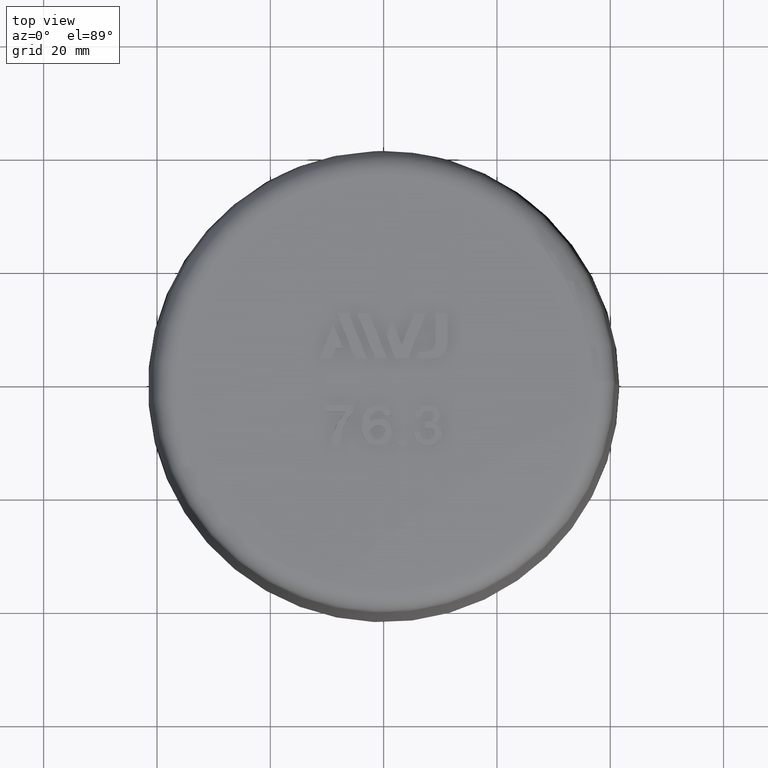
[diagram: clean part render]
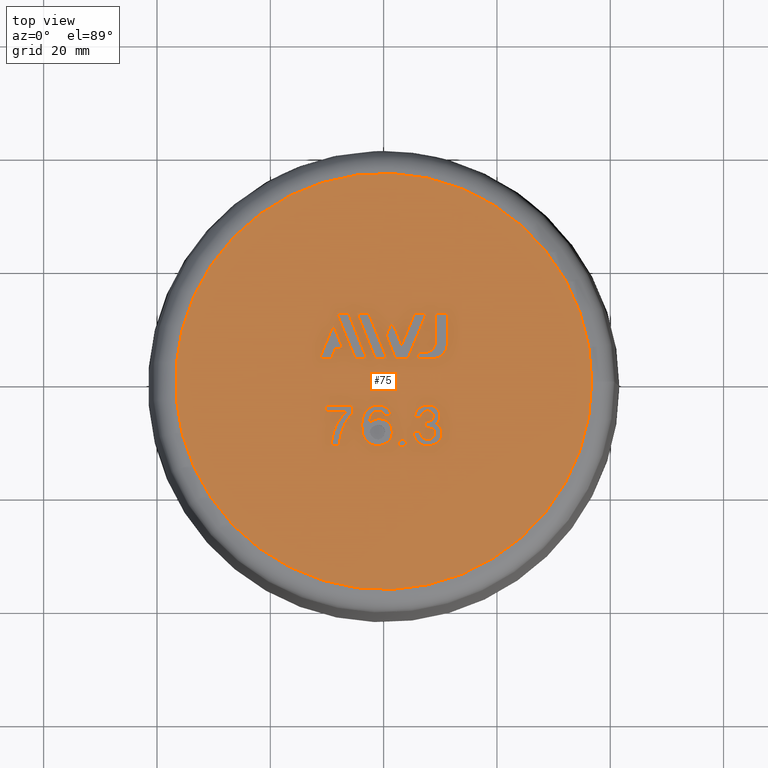
[diagram: same view with one face highlighted and labeled with its STEP entity id]
A machine part, top view. The second image highlights one B-rep face of the part: STEP entity #75.
In plain terms, the highlighted planar face has unit normal (0, 0, -1).
Its self-contained STEP definition (entity closure, byte-faithful):
#75 = ADVANCED_FACE( '', ( #143, #144, #145, #146, #147, #148, #149, #150, #151, #152 ), #153, .F. );
#143 = FACE_BOUND( '', #293, .T. );
#144 = FACE_BOUND( '', #294, .T. );
#145 = FACE_BOUND( '', #295, .T. );
#146 = FACE_BOUND( '', #296, .T. );
#147 = FACE_BOUND( '', #297, .T. );
#148 = FACE_BOUND( '', #298, .T. );
#149 = FACE_OUTER_BOUND( '', #299, .T. );
#150 = FACE_BOUND( '', #300, .T. );
#151 = FACE_BOUND( '', #301, .T. );
#152 = FACE_BOUND( '', #302, .T. );
#153 = PLANE( '', #303 );
#293 = EDGE_LOOP( '', ( #456, #457, #458, #459, #460, #461, #462, #463 ) );
#294 = EDGE_LOOP( '', ( #464 ) );
#295 = EDGE_LOOP( '', ( #465, #466, #467, #468 ) );
#296 = EDGE_LOOP( '', ( #469, #470, #471, #472, #473 ) );
#297 = EDGE_LOOP( '', ( #474, #475, #476, #477 ) );
#298 = EDGE_LOOP( '', ( #478, #479, #480, #481, #482, #483, #484, #485 ) );
#299 = EDGE_LOOP( '', ( #486 ) );
#300 = EDGE_LOOP( '', ( #487, #488, #489, #490, #491, #492, #493 ) );
#301 = EDGE_LOOP( '', ( #494, #495, #496, #497 ) );
#302 = EDGE_LOOP( '', ( #498, #499, #500, #501, #502, #503, #504 ) );
#303 = AXIS2_PLACEMENT_3D( '', #505, #506, #507 );
#456 = ORIENTED_EDGE( '', *, *, #1060, .T. );
#457 = ORIENTED_EDGE( '', *, *, #1061, .T. );
#458 = ORIENTED_EDGE( '', *, *, #1062, .T. );
#459 = ORIENTED_EDGE( '', *, *, #1063, .T. );
#460 = ORIENTED_EDGE( '', *, *, #1064, .T. );
#461 = ORIENTED_EDGE( '', *, *, #1065, .T. );
#462 = ORIENTED_EDGE( '', *, *, #1066, .T. );
#463 = ORIENTED_EDGE( '', *, *, #1067, .T. );
#464 = ORIENTED_EDGE( '', *, *, #1068, .T. );
#465 = ORIENTED_EDGE( '', *, *, #1069, .T. );
#466 = ORIENTED_EDGE( '', *, *, #1070, .T. );
#467 = ORIENTED_EDGE( '', *, *, #1071, .T. );
#468 = ORIENTED_EDGE( '', *, *, #1072, .T. );
#469 = ORIENTED_EDGE( '', *, *, #1073, .F. );
#470 = ORIENTED_EDGE( '', *, *, #1074, .F. );
#471 = ORIENTED_EDGE( '', *, *, #1075, .F. );
#472 = ORIENTED_EDGE( '', *, *, #1076, .F. );
#473 = ORIENTED_EDGE( '', *, *, #1077, .F. );
#474 = ORIENTED_EDGE( '', *, *, #1078, .F. );
#475 = ORIENTED_EDGE( '', *, *, #1079, .F. );
#476 = ORIENTED_EDGE( '', *, *, #1080, .F. );
#477 = ORIENTED_EDGE( '', *, *, #1081, .F. );
#478 = ORIENTED_EDGE( '', *, *, #1082, .F. );
#479 = ORIENTED_EDGE( '', *, *, #1083, .F. );
#480 = ORIENTED_EDGE( '', *, *, #1084, .F. );
#481 = ORIENTED_EDGE( '', *, *, #1085, .F. );
#482 = ORIENTED_EDGE( '', *, *, #1086, .F. );
#483 = ORIENTED_EDGE( '', *, *, #1087, .F. );
#484 = ORIENTED_EDGE( '', *, *, #1088, .F. );
#485 = ORIENTED_EDGE( '', *, *, #1089, .F. );
#486 = ORIENTED_EDGE( '', *, *, #1090, .T. );
#487 = ORIENTED_EDGE( '', *, *, #1091, .F. );
#488 = ORIENTED_EDGE( '', *, *, #1092, .F. );
#489 = ORIENTED_EDGE( '', *, *, #1093, .F. );
#490 = ORIENTED_EDGE( '', *, *, #1094, .F. );
#491 = ORIENTED_EDGE( '', *, *, #1095, .F. );
#492 = ORIENTED_EDGE( '', *, *, #1096, .F. );
#493 = ORIENTED_EDGE( '', *, *, #1097, .F. );
#494 = ORIENTED_EDGE( '', *, *, #1098, .F. );
#495 = ORIENTED_EDGE( '', *, *, #1099, .F. );
#496 = ORIENTED_EDGE( '', *, *, #1100, .F. );
#497 = ORIENTED_EDGE( '', *, *, #1101, .F. );
#498 = ORIENTED_EDGE( '', *, *, #1102, .T. );
#499 = ORIENTED_EDGE( '', *, *, #1103, .T. );
#500 = ORIENTED_EDGE( '', *, *, #1104, .T. );
#501 = ORIENTED_EDGE( '', *, *, #1105, .T. );
#502 = ORIENTED_EDGE( '', *, *, #1106, .T. );
#503 = ORIENTED_EDGE( '', *, *, #1107, .T. );
#504 = ORIENTED_EDGE( '', *, *, #1108, .T. );
#505 = CARTESIAN_POINT( '', ( -3.24520683762930E-015, 36.7309261136789, 53.0000000000000 ) );
#506 = DIRECTION( '', ( 6.12303176911189E-017, 0.000000000000000, -1.00000000000000 ) );
#507 = DIRECTION( '', ( -1.00000000000000, 0.000000000000000, -6.12303176911189E-017 ) );
#1060 = EDGE_CURVE( '', #1215, #1216, #1217, .T. );
#1061 = EDGE_CURVE( '', #1216, #1218, #1219, .T. );
#1062 = EDGE_CURVE( '', #1218, #1220, #1221, .T. );
#1063 = EDGE_CURVE( '', #1220, #1222, #1223, .T. );
#1064 = EDGE_CURVE( '', #1222, #1224, #1225, .T. );
#1065 = EDGE_CURVE( '', #1224, #1226, #1227, .T. );
#1066 = EDGE_CURVE( '', #1226, #1228, #1229, .T. );
#1067 = EDGE_CURVE( '', #1228, #1215, #1230, .T. );
#1068 = EDGE_CURVE( '', #1231, #1231, #1232, .T. );
#1069 = EDGE_CURVE( '', #1233, #1234, #1235, .T. );
#1070 = EDGE_CURVE( '', #1234, #1236, #1237, .T. );
#1071 = EDGE_CURVE( '', #1236, #1238, #1239, .T. );
#1072 = EDGE_CURVE( '', #1238, #1233, #1240, .T. );
#1073 = EDGE_CURVE( '', #1241, #1242, #1243, .T. );
#1074 = EDGE_CURVE( '', #1244, #1241, #1245, .T. );
#1075 = EDGE_CURVE( '', #1246, #1244, #1247, .T. );
#1076 = EDGE_CURVE( '', #1248, #1246, #1249, .T. );
#1077 = EDGE_CURVE( '', #1242, #1248, #1250, .T. );
#1078 = EDGE_CURVE( '', #1251, #1252, #1253, .T. );
#1079 = EDGE_CURVE( '', #1254, #1251, #1255, .T. );
#1080 = EDGE_CURVE( '', #1256, #1254, #1257, .T. );
#1081 = EDGE_CURVE( '', #1252, #1256, #1258, .T. );
#1082 = EDGE_CURVE( '', #1259, #1260, #1261, .T. );
#1083 = EDGE_CURVE( '', #1262, #1259, #1263, .T. );
#1084 = EDGE_CURVE( '', #1264, #1262, #1265, .T. );
#1085 = EDGE_CURVE( '', #1266, #1264, #1267, .T. );
#1086 = EDGE_CURVE( '', #1268, #1266, #1269, .T. );
#1087 = EDGE_CURVE( '', #1270, #1268, #1271, .T. );
#1088 = EDGE_CURVE( '', #1272, #1270, #1273, .T. );
#1089 = EDGE_CURVE( '', #1260, #1272, #1274, .T. );
#1090 = EDGE_CURVE( '', #1275, #1275, #1276, .T. );
#1091 = EDGE_CURVE( '', #1277, #1278, #1279, .T. );
#1092 = EDGE_CURVE( '', #1280, #1277, #1281, .T. );
#1093 = EDGE_CURVE( '', #1282, #1280, #1283, .T. );
#1094 = EDGE_CURVE( '', #1284, #1282, #1285, .T. );
#1095 = EDGE_CURVE( '', #1286, #1284, #1287, .T. );
#1096 = EDGE_CURVE( '', #1288, #1286, #1289, .T. );
#1097 = EDGE_CURVE( '', #1278, #1288, #1290, .T. );
#1098 = EDGE_CURVE( '', #1291, #1292, #1293, .T. );
#1099 = EDGE_CURVE( '', #1294, #1291, #1295, .T. );
#1100 = EDGE_CURVE( '', #1296, #1294, #1297, .T. );
#1101 = EDGE_CURVE( '', #1292, #1296, #1298, .T. );
#1102 = EDGE_CURVE( '', #1299, #1300, #1301, .T. );
#1103 = EDGE_CURVE( '', #1300, #1302, #1303, .T. );
#1104 = EDGE_CURVE( '', #1302, #1304, #1305, .T. );
#1105 = EDGE_CURVE( '', #1304, #1306, #1307, .T. );
#1106 = EDGE_CURVE( '', #1306, #1308, #1309, .T. );
#1107 = EDGE_CURVE( '', #1308, #1310, #1311, .T. );
#1108 = EDGE_CURVE( '', #1310, #1299, #1312, .T. );
#1215 = VERTEX_POINT( '', #1476 );
#1216 = VERTEX_POINT( '', #1477 );
#1217 = B_SPLINE_CURVE_WITH_KNOTS( '', 2, ( #1478, #1479, #1480, #1481, #1482, #1483, #1484, #1485, #1486 ), .UNSPECIFIED., .F., .F., ( 3, 2, 2, 2, 3 ), ( 19.0000000000000, 20.0000000000000, 21.0000000000000, 22.0000000000000, 23.0000000000000 ), .UNSPECIFIED. );
#1218 = VERTEX_POINT( '', #1487 );
#1219 = B_SPLINE_CURVE_WITH_KNOTS( '', 2, ( #1488, #1489, #1490 ), .UNSPECIFIED., .F., .F., ( 3, 3 ), ( 0.000000000000000, 1.00000000000000 ), .UNSPECIFIED. );
#1220 = VERTEX_POINT( '', #1491 );
#1221 = B_SPLINE_CURVE_WITH_KNOTS( '', 2, ( #1492, #1493, #1494 ), .UNSPECIFIED., .F., .F., ( 3, 3 ), ( 1.00000000000000, 2.00000000000000 ), .UNSPECIFIED. );
#1222 = VERTEX_POINT( '', #1495 );
#1223 = B_SPLINE_CURVE_WITH_KNOTS( '', 2, ( #1496, #1497, #1498, #1499, #1500, #1501, #1502, #1503, #1504, #1505, #1506 ), .UNSPECIFIED., .F., .F., ( 3, 2, 2, 2, 2, 3 ), ( 2.00000000000000, 3.00000000000000, 4.00000000000000, 5.00000000000000, 6.00000000000000, 7.00000000000000 ), .UNSPECIFIED. );
#1224 = VERTEX_POINT( '', #1507 );
#1225 = B_SPLINE_CURVE_WITH_KNOTS( '', 2, ( #1508, #1509, #1510 ), .UNSPECIFIED., .F., .F., ( 3, 3 ), ( 7.00000000000000, 8.00000000000000 ), .UNSPECIFIED. );
#1226 = VERTEX_POINT( '', #1511 );
#1227 = B_SPLINE_CURVE_WITH_KNOTS( '', 2, ( #1512, #1513, #1514, #1515, #1516, #1517, #1518, #1519, #1520, #1521, #1522 ), .UNSPECIFIED., .F., .F., ( 3, 2, 2, 2, 2, 3 ), ( 8.00000000000000, 9.00000000000000, 10.0000000000000, 11.0000000000000, 12.0000000000000, 13.0000000000000 ), .UNSPECIFIED. );
#1228 = VERTEX_POINT( '', #1523 );
#1229 = B_SPLINE_CURVE_WITH_KNOTS( '', 2, ( #1524, #1525, #1526 ), .UNSPECIFIED., .F., .F., ( 3, 3 ), ( 13.0000000000000, 14.0000000000000 ), .UNSPECIFIED. );
#1230 = B_SPLINE_CURVE_WITH_KNOTS( '', 2, ( #1527, #1528, #1529, #1530, #1531, #1532, #1533, #1534, #1535, #1536, #1537 ), .UNSPECIFIED., .F., .F., ( 3, 2, 2, 2, 2, 3 ), ( 14.0000000000000, 15.0000000000000, 16.0000000000000, 17.0000000000000, 18.0000000000000, 19.0000000000000 ), .UNSPECIFIED. );
#1231 = VERTEX_POINT( '', #1538 );
#1232 = B_SPLINE_CURVE_WITH_KNOTS( '', 2, ( #1539, #1540, #1541, #1542, #1543, #1544, #1545, #1546, #1547, #1548, #1549, #1550, #1551, #1552, #1553, #1554, #1555 ), .UNSPECIFIED., .T., .F., ( 3, 2, 2, 2, 2, 2, 2, 2, 3 ), ( 0.000000000000000, 1.00000000000000, 2.00000000000000, 3.00000000000000, 4.00000000000000, 5.00000000000000, 6.00000000000000, 7.00000000000000, 8.00000000000000 ), .UNSPECIFIED. );
#1233 = VERTEX_POINT( '', #1556 );
#1234 = VERTEX_POINT( '', #1557 );
#1235 = B_SPLINE_CURVE_WITH_KNOTS( '', 2, ( #1558, #1559, #1560, #1561, #1562, #1563, #1564, #1565, #1566, #1567, #1568, #1569, #1570, #1571, #1572, #1573, #1574, #1575, #1576, #1577, #1578, #1579, #1580 ), .UNSPECIFIED., .F., .F., ( 3, 2, 2, 2, 2, 2, 2, 2, 2, 2, 2, 3 ), ( 5.00000000000000, 6.00000000000000, 7.00000000000000, 8.00000000000000, 9.00000000000000, 10.0000000000000, 11.0000000000000, 12.0000000000000, 13.0000000000000, 14.0000000000000, 15.0000000000000, 16.0000000000000 ), .UNSPECIFIED. );
#1236 = VERTEX_POINT( '', #1581 );
#1237 = B_SPLINE_CURVE_WITH_KNOTS( '', 2, ( #1582, #1583, #1584 ), .UNSPECIFIED., .F., .F., ( 3, 3 ), ( 0.000000000000000, 1.00000000000000 ), .UNSPECIFIED. );
#1238 = VERTEX_POINT( '', #1585 );
#1239 = B_SPLINE_CURVE_WITH_KNOTS( '', 2, ( #1586, #1587, #1588 ), .UNSPECIFIED., .F., .F., ( 3, 3 ), ( 1.00000000000000, 2.00000000000000 ), .UNSPECIFIED. );
#1240 = B_SPLINE_CURVE_WITH_KNOTS( '', 2, ( #1589, #1590, #1591, #1592, #1593, #1594, #1595 ), .UNSPECIFIED., .F., .F., ( 3, 2, 2, 3 ), ( 2.00000000000000, 3.00000000000000, 4.00000000000000, 5.00000000000000 ), .UNSPECIFIED. );
#1241 = VERTEX_POINT( '', #1596 );
#1242 = VERTEX_POINT( '', #1597 );
#1243 = LINE( '', #1598, #1599 );
#1244 = VERTEX_POINT( '', #1600 );
#1245 = LINE( '', #1601, #1602 );
#1246 = VERTEX_POINT( '', #1603 );
#1247 = LINE( '', #1604, #1605 );
#1248 = VERTEX_POINT( '', #1606 );
#1249 = LINE( '', #1607, #1608 );
#1250 = LINE( '', #1609, #1610 );
#1251 = VERTEX_POINT( '', #1611 );
#1252 = VERTEX_POINT( '', #1612 );
#1253 = LINE( '', #1613, #1614 );
#1254 = VERTEX_POINT( '', #1615 );
#1255 = LINE( '', #1616, #1617 );
#1256 = VERTEX_POINT( '', #1618 );
#1257 = LINE( '', #1619, #1620 );
#1258 = LINE( '', #1621, #1622 );
#1259 = VERTEX_POINT( '', #1623 );
#1260 = VERTEX_POINT( '', #1624 );
#1261 = LINE( '', #1625, #1626 );
#1262 = VERTEX_POINT( '', #1627 );
#1263 = LINE( '', #1628, #1629 );
#1264 = VERTEX_POINT( '', #1630 );
#1265 = LINE( '', #1631, #1632 );
#1266 = VERTEX_POINT( '', #1633 );
#1267 = CIRCLE( '', #1634, 2.66906640000000 );
#1268 = VERTEX_POINT( '', #1635 );
#1269 = LINE( '', #1636, #1637 );
#1270 = VERTEX_POINT( '', #1638 );
#1271 = LINE( '', #1639, #1640 );
#1272 = VERTEX_POINT( '', #1641 );
#1273 = LINE( '', #1642, #1643 );
#1274 = CIRCLE( '', #1644, 1.77937760000000 );
#1275 = VERTEX_POINT( '', #1645 );
#1276 = CIRCLE( '', #1646, 36.7309261136789 );
#1277 = VERTEX_POINT( '', #1647 );
#1278 = VERTEX_POINT( '', #1648 );
#1279 = LINE( '', #1649, #1650 );
#1280 = VERTEX_POINT( '', #1651 );
#1281 = LINE( '', #1652, #1653 );
#1282 = VERTEX_POINT( '', #1654 );
#1283 = LINE( '', #1655, #1656 );
#1284 = VERTEX_POINT( '', #1657 );
#1285 = LINE( '', #1658, #1659 );
#1286 = VERTEX_POINT( '', #1660 );
#1287 = LINE( '', #1661, #1662 );
#1288 = VERTEX_POINT( '', #1663 );
#1289 = LINE( '', #1664, #1665 );
#1290 = LINE( '', #1666, #1667 );
#1291 = VERTEX_POINT( '', #1668 );
#1292 = VERTEX_POINT( '', #1669 );
#1293 = LINE( '', #1670, #1671 );
#1294 = VERTEX_POINT( '', #1672 );
#1295 = LINE( '', #1673, #1674 );
#1296 = VERTEX_POINT( '', #1675 );
#1297 = LINE( '', #1676, #1677 );
#1298 = LINE( '', #1678, #1679 );
#1299 = VERTEX_POINT( '', #1680 );
#1300 = VERTEX_POINT( '', #1681 );
#1301 = B_SPLINE_CURVE_WITH_KNOTS( '', 2, ( #1682, #1683, #1684 ), .UNSPECIFIED., .F., .F., ( 3, 3 ), ( 8.00000000000000, 9.00000000000000 ), .UNSPECIFIED. );
#1302 = VERTEX_POINT( '', #1685 );
#1303 = B_SPLINE_CURVE_WITH_KNOTS( '', 2, ( #1686, #1687, #1688 ), .UNSPECIFIED., .F., .F., ( 3, 3 ), ( 0.000000000000000, 1.00000000000000 ), .UNSPECIFIED. );
#1304 = VERTEX_POINT( '', #1689 );
#1305 = B_SPLINE_CURVE_WITH_KNOTS( '', 2, ( #1690, #1691, #1692 ), .UNSPECIFIED., .F., .F., ( 3, 3 ), ( 1.00000000000000, 2.00000000000000 ), .UNSPECIFIED. );
#1306 = VERTEX_POINT( '', #1693 );
#1307 = B_SPLINE_CURVE_WITH_KNOTS( '', 2, ( #1694, #1695, #1696 ), .UNSPECIFIED., .F., .F., ( 3, 3 ), ( 2.00000000000000, 3.00000000000000 ), .UNSPECIFIED. );
#1308 = VERTEX_POINT( '', #1697 );
#1309 = B_SPLINE_CURVE_WITH_KNOTS( '', 2, ( #1698, #1699, #1700, #1701, #1702 ), .UNSPECIFIED., .F., .F., ( 3, 2, 3 ), ( 3.00000000000000, 4.00000000000000, 5.00000000000000 ), .UNSPECIFIED. );
#1310 = VERTEX_POINT( '', #1703 );
#1311 = B_SPLINE_CURVE_WITH_KNOTS( '', 2, ( #1704, #1705, #1706 ), .UNSPECIFIED., .F., .F., ( 3, 3 ), ( 5.00000000000000, 6.00000000000000 ), .UNSPECIFIED. );
#1312 = B_SPLINE_CURVE_WITH_KNOTS( '', 2, ( #1707, #1708, #1709, #1710, #1711 ), .UNSPECIFIED., .F., .F., ( 3, 2, 3 ), ( 6.00000000000000, 7.00000000000000, 8.00000000000000 ), .UNSPECIFIED. );
#1476 = CARTESIAN_POINT( '', ( 9.08821022727272, -7.53065960067532, 53.0000000000000 ) );
#1477 = CARTESIAN_POINT( '', ( 6.09228816821120, -10.7804642266219, 53.0000000000000 ) );
#1478 = CARTESIAN_POINT( '', ( 9.08821022727272, -7.53065960067532, 53.0000000000000 ) );
#1479 = CARTESIAN_POINT( '', ( 10.1109375000000, -7.73520505522078, 53.0000000000000 ) );
#1480 = CARTESIAN_POINT( '', ( 10.2958474418522, -8.89089219179715, 53.0000000000000 ) );
#1481 = CARTESIAN_POINT( '', ( 10.4382102272727, -9.78065960067532, 53.0000000000000 ) );
#1482 = CARTESIAN_POINT( '', ( 9.74857573805061, -10.5359735650615, 53.0000000000000 ) );
#1483 = CARTESIAN_POINT( '', ( 9.00639204545454, -11.3488414188571, 53.0000000000000 ) );
#1484 = CARTESIAN_POINT( '', ( 7.86093750000000, -11.3488414188571, 53.0000000000000 ) );
#1485 = CARTESIAN_POINT( '', ( 6.75639204545454, -11.3488414188571, 53.0000000000000 ) );
#1486 = CARTESIAN_POINT( '', ( 6.09228816821120, -10.7804642266219, 53.0000000000000 ) );
#1487 = CARTESIAN_POINT( '', ( 5.24275568181818, -8.86020505522078, 53.0000000000000 ) );
#1488 = CARTESIAN_POINT( '', ( 6.09228816821120, -10.7804642266219, 53.0000000000000 ) );
#1489 = CARTESIAN_POINT( '', ( 5.24275568181818, -10.0533868734026, 53.0000000000000 ) );
#1490 = CARTESIAN_POINT( '', ( 5.24275568181818, -8.86020505522078, 53.0000000000000 ) );
#1491 = CARTESIAN_POINT( '', ( 6.47002840909091, -8.86020505522078, 53.0000000000000 ) );
#1492 = CARTESIAN_POINT( '', ( 5.24275568181818, -8.86020505522078, 53.0000000000000 ) );
#1493 = CARTESIAN_POINT( '', ( 5.85639204545454, -8.86020505522078, 53.0000000000000 ) );
#1494 = CARTESIAN_POINT( '', ( 6.47002840909091, -8.86020505522078, 53.0000000000000 ) );
#1495 = CARTESIAN_POINT( '', ( 7.32911931818182, -8.17838687340260, 53.0000000000000 ) );
#1496 = CARTESIAN_POINT( '', ( 6.47002840909091, -8.86020505522078, 53.0000000000000 ) );
#1497 = CARTESIAN_POINT( '', ( 6.59275568181818, -9.84884141885714, 53.0000000000000 ) );
#1498 = CARTESIAN_POINT( '', ( 7.20958526164415, -10.1141444639436, 53.0000000000000 ) );
#1499 = CARTESIAN_POINT( '', ( 7.86093750000000, -10.3942959643117, 53.0000000000000 ) );
#1500 = CARTESIAN_POINT( '', ( 8.35034276450635, -10.1526143522098, 53.0000000000000 ) );
#1501 = CARTESIAN_POINT( '', ( 8.96548295454545, -9.84884141885714, 53.0000000000000 ) );
#1502 = CARTESIAN_POINT( '', ( 9.01706183360621, -9.30439769543802, 53.0000000000000 ) );
#1503 = CARTESIAN_POINT( '', ( 9.08821022727272, -8.55338687340260, 53.0000000000000 ) );
#1504 = CARTESIAN_POINT( '', ( 8.47661292295033, -8.30963432457845, 53.0000000000000 ) );
#1505 = CARTESIAN_POINT( '', ( 8.14730113636364, -8.17838687340260, 53.0000000000000 ) );
#1506 = CARTESIAN_POINT( '', ( 7.32911931818182, -8.17838687340260, 53.0000000000000 ) );
#1507 = CARTESIAN_POINT( '', ( 7.32911931818182, -7.12156869158442, 53.0000000000000 ) );
#1508 = CARTESIAN_POINT( '', ( 7.32911931818182, -8.17838687340260, 53.0000000000000 ) );
#1509 = CARTESIAN_POINT( '', ( 7.32911931818182, -7.64997778249351, 53.0000000000000 ) );
#1510 = CARTESIAN_POINT( '', ( 7.32911931818182, -7.12156869158442, 53.0000000000000 ) );
#1511 = CARTESIAN_POINT( '', ( 6.55184659090909, -6.43975050976623, 53.0000000000000 ) );
#1512 = CARTESIAN_POINT( '', ( 7.32911931818182, -7.12156869158442, 53.0000000000000 ) );
#1513 = CARTESIAN_POINT( '', ( 8.35184659090909, -7.12156869158442, 53.0000000000000 ) );
#1514 = CARTESIAN_POINT( '', ( 8.63081684255125, -6.64001290005925, 53.0000000000000 ) );
#1515 = CARTESIAN_POINT( '', ( 8.92457386363636, -6.13293232794805, 53.0000000000000 ) );
#1516 = CARTESIAN_POINT( '', ( 8.69482338378991, -5.71520418277269, 53.0000000000000 ) );
#1517 = CARTESIAN_POINT( '', ( 8.47457386363636, -5.31475050976623, 53.0000000000000 ) );
#1518 = CARTESIAN_POINT( '', ( 7.98480667671260, -5.23916915375948, 53.0000000000000 ) );
#1519 = CARTESIAN_POINT( '', ( 7.37002840909091, -5.14429596431169, 53.0000000000000 ) );
#1520 = CARTESIAN_POINT( '', ( 7.00184659090909, -5.51929596431169, 53.0000000000000 ) );
#1521 = CARTESIAN_POINT( '', ( 6.63366477272727, -5.89429596431169, 53.0000000000000 ) );
#1522 = CARTESIAN_POINT( '', ( 6.55184659090909, -6.43975050976623, 53.0000000000000 ) );
#1523 = CARTESIAN_POINT( '', ( 5.44730113636363, -6.43975050976623, 53.0000000000000 ) );
#1524 = CARTESIAN_POINT( '', ( 6.55184659090909, -6.43975050976623, 53.0000000000000 ) );
#1525 = CARTESIAN_POINT( '', ( 5.99957386363636, -6.43975050976623, 53.0000000000000 ) );
#1526 = CARTESIAN_POINT( '', ( 5.44730113636363, -6.43975050976623, 53.0000000000000 ) );
#1527 = CARTESIAN_POINT( '', ( 5.44730113636363, -6.43975050976623, 53.0000000000000 ) );
#1528 = CARTESIAN_POINT( '', ( 5.48821022727273, -5.31475050976623, 53.0000000000000 ) );
#1529 = CARTESIAN_POINT( '', ( 6.17471237840063, -4.72478772364069, 53.0000000000000 ) );
#1530 = CARTESIAN_POINT( '', ( 6.79730113636363, -4.18975050976623, 53.0000000000000 ) );
#1531 = CARTESIAN_POINT( '', ( 7.86093750000000, -4.18975050976623, 53.0000000000000 ) );
#1532 = CARTESIAN_POINT( '', ( 8.67911931818182, -4.18975050976623, 53.0000000000000 ) );
#1533 = CARTESIAN_POINT( '', ( 9.28471756547146, -4.67701346735560, 53.0000000000000 ) );
#1534 = CARTESIAN_POINT( '', ( 9.86548295454545, -5.14429596431169, 53.0000000000000 ) );
#1535 = CARTESIAN_POINT( '', ( 9.93106119200595, -5.89571326854654, 53.0000000000000 ) );
#1536 = CARTESIAN_POINT( '', ( 10.0291193181818, -7.01929596431169, 53.0000000000000 ) );
#1537 = CARTESIAN_POINT( '', ( 9.08821022727272, -7.53065960067532, 53.0000000000000 ) );
#1538 = CARTESIAN_POINT( '', ( 3.27911931818182, -10.2920232370390, 53.0000000000000 ) );
#1539 = CARTESIAN_POINT( '', ( 3.27911931818182, -10.2920232370390, 53.0000000000000 ) );
#1540 = CARTESIAN_POINT( '', ( 3.56548295454545, -10.2920232370390, 53.0000000000000 ) );
#1541 = CARTESIAN_POINT( '', ( 3.81093750000000, -10.4965686915844, 53.0000000000000 ) );
#1542 = CARTESIAN_POINT( '', ( 4.01548295454545, -10.6670232370390, 53.0000000000000 ) );
#1543 = CARTESIAN_POINT( '', ( 4.01548295454545, -10.9056596006753, 53.0000000000000 ) );
#1544 = CARTESIAN_POINT( '', ( 4.01548295454545, -11.1442959643117, 53.0000000000000 ) );
#1545 = CARTESIAN_POINT( '', ( 3.81093750000000, -11.3147505097662, 53.0000000000000 ) );
#1546 = CARTESIAN_POINT( '', ( 3.56548295454545, -11.5192959643117, 53.0000000000000 ) );
#1547 = CARTESIAN_POINT( '', ( 3.27911931818182, -11.5192959643117, 53.0000000000000 ) );
#1548 = CARTESIAN_POINT( '', ( 2.99275568181818, -11.5192959643117, 53.0000000000000 ) );
#1549 = CARTESIAN_POINT( '', ( 2.74730113636363, -11.3147505097662, 53.0000000000000 ) );
#1550 = CARTESIAN_POINT( '', ( 2.54275568181818, -11.1442959643117, 53.0000000000000 ) );
#1551 = CARTESIAN_POINT( '', ( 2.54275568181818, -10.9056596006753, 53.0000000000000 ) );
#1552 = CARTESIAN_POINT( '', ( 2.54275568181818, -10.6670232370390, 53.0000000000000 ) );
#1553 = CARTESIAN_POINT( '', ( 2.74730113636363, -10.4965686915844, 53.0000000000000 ) );
#1554 = CARTESIAN_POINT( '', ( 2.99275568181818, -10.2920232370390, 53.0000000000000 ) );
#1555 = CARTESIAN_POINT( '', ( 3.27911931818182, -10.2920232370390, 53.0000000000000 ) );
#1556 = CARTESIAN_POINT( '', ( -2.44815340909091, -7.18975050976623, 53.0000000000000 ) );
#1557 = CARTESIAN_POINT( '', ( 0.502424577934415, -4.62614818462674, 53.0000000000000 ) );
#1558 = CARTESIAN_POINT( '', ( -2.44815340909091, -7.18975050976623, 53.0000000000000 ) );
#1559 = CARTESIAN_POINT( '', ( -0.975426136363639, -6.13293232794805, 53.0000000000000 ) );
#1560 = CARTESIAN_POINT( '', ( 0.444123261719444, -6.90547621806129, 53.0000000000000 ) );
#1561 = CARTESIAN_POINT( '', ( 1.02911931818182, -7.22384141885714, 53.0000000000000 ) );
#1562 = CARTESIAN_POINT( '', ( 1.31752336806926, -7.90479542553583, 53.0000000000000 ) );
#1563 = CARTESIAN_POINT( '', ( 1.52002840909091, -8.38293232794805, 53.0000000000000 ) );
#1564 = CARTESIAN_POINT( '', ( 1.52002840909091, -9.03065960067532, 53.0000000000000 ) );
#1565 = CARTESIAN_POINT( '', ( 1.52002840909091, -9.81475050976623, 53.0000000000000 ) );
#1566 = CARTESIAN_POINT( '', ( 0.987513288845797, -10.4619043017308, 53.0000000000000 ) );
#1567 = CARTESIAN_POINT( '', ( 0.538210227272724, -11.0079323279481, 53.0000000000000 ) );
#1568 = CARTESIAN_POINT( '', ( -0.199443707955007, -11.2077136020722, 53.0000000000000 ) );
#1569 = CARTESIAN_POINT( '', ( -1.09815340909091, -11.4511141461299, 53.0000000000000 ) );
#1570 = CARTESIAN_POINT( '', ( -1.95315340909091, -11.1661141461299, 53.0000000000000 ) );
#1571 = CARTESIAN_POINT( '', ( -2.93906250000000, -10.8374777824935, 53.0000000000000 ) );
#1572 = CARTESIAN_POINT( '', ( -3.42933108533669, -9.98483676451665, 53.0000000000000 ) );
#1573 = CARTESIAN_POINT( '', ( -3.87997159090909, -9.20111414612987, 53.0000000000000 ) );
#1574 = CARTESIAN_POINT( '', ( -3.85951306373311, -7.73491969851753, 53.0000000000000 ) );
#1575 = CARTESIAN_POINT( '', ( -3.83906250000000, -6.26929596431169, 53.0000000000000 ) );
#1576 = CARTESIAN_POINT( '', ( -3.33086242147141, -5.46199896456575, 53.0000000000000 ) );
#1577 = CARTESIAN_POINT( '', ( -2.52997159090909, -4.18975050976623, 53.0000000000000 ) );
#1578 = CARTESIAN_POINT( '', ( -0.934517045454549, -4.18975050976623, 53.0000000000000 ) );
#1579 = CARTESIAN_POINT( '', ( -0.0754261363636389, -4.18975050976623, 53.0000000000000 ) );
#1580 = CARTESIAN_POINT( '', ( 0.502424577934415, -4.62614818462674, 53.0000000000000 ) );
#1581 = CARTESIAN_POINT( '', ( 1.39730113636363, -6.09884141885714, 53.0000000000000 ) );
#1582 = CARTESIAN_POINT( '', ( 0.502424577934415, -4.62614818462674, 53.0000000000000 ) );
#1583 = CARTESIAN_POINT( '', ( 1.23366477272727, -5.17838687340260, 53.0000000000000 ) );
#1584 = CARTESIAN_POINT( '', ( 1.39730113636363, -6.09884141885714, 53.0000000000000 ) );
#1585 = CARTESIAN_POINT( '', ( 0.0882102272727252, -6.09884141885714, 53.0000000000000 ) );
#1586 = CARTESIAN_POINT( '', ( 1.39730113636363, -6.09884141885714, 53.0000000000000 ) );
#1587 = CARTESIAN_POINT( '', ( 0.742755681818180, -6.09884141885714, 53.0000000000000 ) );
#1588 = CARTESIAN_POINT( '', ( 0.0882102272727252, -6.09884141885714, 53.0000000000000 ) );
#1589 = CARTESIAN_POINT( '', ( 0.0882102272727252, -6.09884141885714, 53.0000000000000 ) );
#1590 = CARTESIAN_POINT( '', ( -0.116335227272730, -5.24656869158441, 53.0000000000000 ) );
#1591 = CARTESIAN_POINT( '', ( -0.975426136363639, -5.24656869158441, 53.0000000000000 ) );
#1592 = CARTESIAN_POINT( '', ( -1.62997159090909, -5.24656869158441, 53.0000000000000 ) );
#1593 = CARTESIAN_POINT( '', ( -2.07914648888035, -5.82675293479728, 53.0000000000000 ) );
#1594 = CARTESIAN_POINT( '', ( -2.44815340909091, -6.30338687340260, 53.0000000000000 ) );
#1595 = CARTESIAN_POINT( '', ( -2.44815340909091, -7.18975050976623, 53.0000000000000 ) );
#1596 = CARTESIAN_POINT( '', ( -11.3055246944640, 3.99187716296106, 53.0000000000001 ) );
#1597 = CARTESIAN_POINT( '', ( -9.23852583013359, 3.99187716296106, 53.0000000000001 ) );
#1598 = CARTESIAN_POINT( '', ( -11.3055246944640, 3.99187716296106, 53.0000000000001 ) );
#1599 = VECTOR( '', #2114, 1000.00000000000 );
#1600 = CARTESIAN_POINT( '', ( -8.88200528575360, 9.99107187326987, 53.0000000000001 ) );
#1601 = CARTESIAN_POINT( '', ( -8.88200528575361, 9.99107187326987, 53.0000000000001 ) );
#1602 = VECTOR( '', #2115, 1000.00000000000 );
#1603 = CARTESIAN_POINT( '', ( -7.20559048088879, 5.83988179823787, 53.0000000000001 ) );
#1604 = CARTESIAN_POINT( '', ( -7.20559048088879, 5.83988179823787, 53.0000000000001 ) );
#1605 = VECTOR( '', #2116, 1000.00000000000 );
#1606 = CARTESIAN_POINT( '', ( -8.49134026460719, 5.83988179823787, 53.0000000000001 ) );
#1607 = CARTESIAN_POINT( '', ( -8.49134026460719, 5.83988179823787, 53.0000000000001 ) );
#1608 = VECTOR( '', #2117, 1000.00000000000 );
#1609 = CARTESIAN_POINT( '', ( -9.23852583013359, 3.99187716296106, 53.0000000000001 ) );
#1610 = VECTOR( '', #2118, 1000.00000000000 );
#1611 = CARTESIAN_POINT( '', ( 0.605832698671202, 3.99187716296106, 53.0000000000001 ) );
#1612 = CARTESIAN_POINT( '', ( -2.62726526142080, 11.9932186519019, 53.0000000000001 ) );
#1613 = CARTESIAN_POINT( '', ( 0.605832698671202, 3.99187716296106, 53.0000000000001 ) );
#1614 = VECTOR( '', #2119, 1000.00000000000 );
#1615 = CARTESIAN_POINT( '', ( -1.46176848497681, 3.99187716296105, 53.0000000000001 ) );
#1616 = CARTESIAN_POINT( '', ( -1.46176848497680, 3.99187716296106, 53.0000000000001 ) );
#1617 = VECTOR( '', #2120, 1000.00000000000 );
#1618 = CARTESIAN_POINT( '', ( -4.69486555538000, 11.9932186519019, 53.0000000000001 ) );
#1619 = CARTESIAN_POINT( '', ( -4.69486555538000, 11.9932186519019, 53.0000000000001 ) );
#1620 = VECTOR( '', #2121, 1000.00000000000 );
#1621 = CARTESIAN_POINT( '', ( -2.62726526142080, 11.9932186519019, 53.0000000000001 ) );
#1622 = VECTOR( '', #2122, 1000.00000000000 );
#1623 = CARTESIAN_POINT( '', ( 9.15294399539518, 11.9932186519019, 53.0000000000001 ) );
#1624 = CARTESIAN_POINT( '', ( 9.15294399539520, 6.93480134155548, 53.0000000000001 ) );
#1625 = CARTESIAN_POINT( '', ( 9.15294399539518, 11.9932186519019, 53.0000000000001 ) );
#1626 = VECTOR( '', #2123, 1000.00000000000 );
#1627 = CARTESIAN_POINT( '', ( 11.2440205077200, 11.9932186519019, 53.0000000000001 ) );
#1628 = CARTESIAN_POINT( '', ( 11.2440205077200, 11.9932186519019, 53.0000000000001 ) );
#1629 = VECTOR( '', #2124, 1000.00000000000 );
#1630 = CARTESIAN_POINT( '', ( 11.2440205077200, 6.66094356296106, 53.0000000000001 ) );
#1631 = CARTESIAN_POINT( '', ( 11.2440205077200, 6.66094356296106, 53.0000000000001 ) );
#1632 = VECTOR( '', #2125, 1000.00000000000 );
#1633 = CARTESIAN_POINT( '', ( 8.57495410771999, 3.99187716296106, 53.0000000000001 ) );
#1634 = AXIS2_PLACEMENT_3D( '', #2126, #2127, #2128 );
#1635 = CARTESIAN_POINT( '', ( 5.76693344186960, 3.99187716296106, 53.0000000000001 ) );
#1636 = CARTESIAN_POINT( '', ( 5.76693344186960, 3.99187716296106, 53.0000000000001 ) );
#1637 = VECTOR( '', #2129, 1000.00000000000 );
#1638 = CARTESIAN_POINT( '', ( 6.23703610690159, 5.15542374155547, 53.0000000000001 ) );
#1639 = CARTESIAN_POINT( '', ( 6.23703610690159, 5.15542374155547, 53.0000000000001 ) );
#1640 = VECTOR( '', #2130, 1000.00000000000 );
#1641 = CARTESIAN_POINT( '', ( 7.37356639539519, 5.15542374155548, 53.0000000000001 ) );
#1642 = CARTESIAN_POINT( '', ( 7.37356639539519, 5.15542374155547, 53.0000000000001 ) );
#1643 = VECTOR( '', #2131, 1000.00000000000 );
#1644 = AXIS2_PLACEMENT_3D( '', #2132, #2133, #2134 );
#1645 = CARTESIAN_POINT( '', ( 36.7309261136789, 0.000000000000000, 53.0000000000000 ) );
#1646 = AXIS2_PLACEMENT_3D( '', #2135, #2136, #2137 );
#1647 = CARTESIAN_POINT( '', ( 7.51180979989440, 11.9932186519019, 53.0000000000000 ) );
#1648 = CARTESIAN_POINT( '', ( 5.44418192558239, 11.9932186519019, 53.0000000000000 ) );
#1649 = CARTESIAN_POINT( '', ( 7.51180979989440, 11.9932186519019, 53.0000000000000 ) );
#1650 = VECTOR( '', #2138, 1000.00000000000 );
#1651 = CARTESIAN_POINT( '', ( 4.27921985210719, 3.99187716296106, 53.0000000000000 ) );
#1652 = CARTESIAN_POINT( '', ( 4.27921985210719, 3.99187716296106, 53.0000000000000 ) );
#1653 = VECTOR( '', #2139, 1000.00000000000 );
#1654 = CARTESIAN_POINT( '', ( 2.09354539874480, 3.99187716296106, 53.0000000000000 ) );
#1655 = CARTESIAN_POINT( '', ( 2.09354539874480, 3.99187716296106, 53.0000000000000 ) );
#1656 = VECTOR( '', #2140, 1000.00000000000 );
#1657 = CARTESIAN_POINT( '', ( 0.446261674258403, 8.06833604785948, 53.0000000000000 ) );
#1658 = CARTESIAN_POINT( '', ( 0.446261674258408, 8.06833604785948, 53.0000000000000 ) );
#1659 = VECTOR( '', #2141, 1000.00000000000 );
#1660 = CARTESIAN_POINT( '', ( 1.48007561141440, 10.6275632479891, 53.0000000000000 ) );
#1661 = CARTESIAN_POINT( '', ( 1.48007561141439, 10.6275632479891, 53.0000000000000 ) );
#1662 = VECTOR( '', #2142, 1000.00000000000 );
#1663 = CARTESIAN_POINT( '', ( 3.18615530993760, 6.40506283625947, 53.0000000000000 ) );
#1664 = CARTESIAN_POINT( '', ( 3.18615530993760, 6.40506283625947, 53.0000000000000 ) );
#1665 = VECTOR( '', #2143, 1000.00000000000 );
#1666 = CARTESIAN_POINT( '', ( 5.44418192558239, 11.9932186519019, 53.0000000000000 ) );
#1667 = VECTOR( '', #2144, 1000.00000000000 );
#1668 = CARTESIAN_POINT( '', ( -2.94953456637839, 3.99187716296106, 53.0000000000001 ) );
#1669 = CARTESIAN_POINT( '', ( -6.18263252647040, 11.9932186519019, 53.0000000000001 ) );
#1670 = CARTESIAN_POINT( '', ( -2.94953456637839, 3.99187716296106, 53.0000000000001 ) );
#1671 = VECTOR( '', #2145, 1000.00000000000 );
#1672 = CARTESIAN_POINT( '', ( -5.01698806168560, 3.99187716296105, 53.0000000000001 ) );
#1673 = CARTESIAN_POINT( '', ( -5.01698806168560, 3.99187716296106, 53.0000000000001 ) );
#1674 = VECTOR( '', #2146, 1000.00000000000 );
#1675 = CARTESIAN_POINT( '', ( -8.24963139080080, 11.9932186519019, 53.0000000000001 ) );
#1676 = CARTESIAN_POINT( '', ( -8.24963139080080, 11.9932186519019, 53.0000000000001 ) );
#1677 = VECTOR( '', #2147, 1000.00000000000 );
#1678 = CARTESIAN_POINT( '', ( -6.18263252647040, 11.9932186519019, 53.0000000000001 ) );
#1679 = VECTOR( '', #2148, 1000.00000000000 );
#1680 = CARTESIAN_POINT( '', ( -6.70269886363637, -5.34884141885714, 53.0000000000000 ) );
#1681 = CARTESIAN_POINT( '', ( -10.3026988636364, -5.34884141885714, 53.0000000000000 ) );
#1682 = CARTESIAN_POINT( '', ( -6.70269886363637, -5.34884141885714, 53.0000000000000 ) );
#1683 = CARTESIAN_POINT( '', ( -8.50269886363637, -5.34884141885714, 53.0000000000000 ) );
#1684 = CARTESIAN_POINT( '', ( -10.3026988636364, -5.34884141885714, 53.0000000000000 ) );
#1685 = CARTESIAN_POINT( '', ( -10.3026988636364, -4.22384141885714, 53.0000000000000 ) );
#1686 = CARTESIAN_POINT( '', ( -10.3026988636364, -5.34884141885714, 53.0000000000000 ) );
#1687 = CARTESIAN_POINT( '', ( -10.3026988636364, -4.78634141885714, 53.0000000000000 ) );
#1688 = CARTESIAN_POINT( '', ( -10.3026988636364, -4.22384141885714, 53.0000000000000 ) );
#1689 = CARTESIAN_POINT( '', ( -5.39360795454546, -4.22384141885714, 53.0000000000000 ) );
#1690 = CARTESIAN_POINT( '', ( -10.3026988636364, -4.22384141885714, 53.0000000000000 ) );
#1691 = CARTESIAN_POINT( '', ( -7.84815340909091, -4.22384141885714, 53.0000000000000 ) );
#1692 = CARTESIAN_POINT( '', ( -5.39360795454546, -4.22384141885714, 53.0000000000000 ) );
#1693 = CARTESIAN_POINT( '', ( -5.39360795454546, -5.41702323703896, 53.0000000000000 ) );
#1694 = CARTESIAN_POINT( '', ( -5.39360795454546, -4.22384141885714, 53.0000000000000 ) );
#1695 = CARTESIAN_POINT( '', ( -5.39360795454546, -4.82043232794805, 53.0000000000000 ) );
#1696 = CARTESIAN_POINT( '', ( -5.39360795454546, -5.41702323703896, 53.0000000000000 ) );
#1697 = CARTESIAN_POINT( '', ( -7.84815340909091, -11.3147505097662, 53.0000000000000 ) );
#1698 = CARTESIAN_POINT( '', ( -5.39360795454546, -5.41702323703896, 53.0000000000000 ) );
#1699 = CARTESIAN_POINT( '', ( -6.66178977272728, -6.88293232794805, 53.0000000000000 ) );
#1700 = CARTESIAN_POINT( '', ( -7.19360795454546, -8.21247778249350, 53.0000000000000 ) );
#1701 = CARTESIAN_POINT( '', ( -7.72542613636364, -9.54202323703896, 53.0000000000000 ) );
#1702 = CARTESIAN_POINT( '', ( -7.84815340909091, -11.3147505097662, 53.0000000000000 ) );
#1703 = CARTESIAN_POINT( '', ( -9.27997159090909, -11.3147505097662, 53.0000000000000 ) );
#1704 = CARTESIAN_POINT( '', ( -7.84815340909091, -11.3147505097662, 53.0000000000000 ) );
#1705 = CARTESIAN_POINT( '', ( -8.56406250000000, -11.3147505097662, 53.0000000000000 ) );
#1706 = CARTESIAN_POINT( '', ( -9.27997159090909, -11.3147505097662, 53.0000000000000 ) );
#1707 = CARTESIAN_POINT( '', ( -9.27997159090909, -11.3147505097662, 53.0000000000000 ) );
#1708 = CARTESIAN_POINT( '', ( -9.03451704545455, -9.26929596431169, 53.0000000000000 ) );
#1709 = CARTESIAN_POINT( '', ( -8.45940538600497, -8.00902041428330, 53.0000000000000 ) );
#1710 = CARTESIAN_POINT( '', ( -7.92997159090909, -6.84884141885714, 53.0000000000000 ) );
#1711 = CARTESIAN_POINT( '', ( -6.70269886363637, -5.34884141885714, 53.0000000000000 ) );
#2114 = DIRECTION( '', ( 1.00000000000000, -6.69494841509797E-017, 1.83690953073357E-016 ) );
#2115 = DIRECTION( '', ( -0.374565060835224, -0.927200633736574, -6.88042130128021E-017 ) );
#2116 = DIRECTION( '', ( -0.374457798873768, 0.927243957576760, -6.87845099608738E-017 ) );
#2117 = DIRECTION( '', ( 1.00000000000000, -1.14383329197219E-017, 1.83690953073357E-016 ) );
#2118 = DIRECTION( '', ( 0.374840859640758, 0.927089170438194, 6.88548747582471E-017 ) );
#2119 = DIRECTION( '', ( -0.374641075834904, 0.927169922019295, -6.88181762805412E-017 ) );
#2120 = DIRECTION( '', ( 1.00000000000000, -6.12303176911187E-017, 1.83690953073357E-016 ) );
#2121 = DIRECTION( '', ( 0.374640987210495, -0.927169957829710, 6.88181600010391E-017 ) );
#2122 = DIRECTION( '', ( -1.00000000000000, 6.12303176911187E-017, -1.83690953073357E-016 ) );
#2123 = DIRECTION( '', ( -6.69494841509801E-017, -1.00000000000000, -4.79971094235240E-033 ) );
#2124 = DIRECTION( '', ( -1.00000000000000, 6.69494841509797E-017, -1.83690953073357E-016 ) );
#2125 = DIRECTION( '', ( 6.69494841509801E-017, 1.00000000000000, 4.79971094235241E-033 ) );
#2126 = CARTESIAN_POINT( '', ( 8.57495410771999, 6.66094356296106, 53.0000000000001 ) );
#2127 = DIRECTION( '', ( -6.12303176911189E-017, 2.40116467838361E-050, 1.00000000000000 ) );
#2128 = DIRECTION( '', ( 1.00000000000000, 2.30964631921741E-018, 6.12303176911189E-017 ) );
#2129 = DIRECTION( '', ( 1.00000000000000, -6.69494841509798E-017, 1.83690953073357E-016 ) );
#2130 = DIRECTION( '', ( -0.374606136016172, -0.927184039368147, -6.88117581519381E-017 ) );
#2131 = DIRECTION( '', ( -1.00000000000000, 6.69494841509797E-017, -1.83690953073357E-016 ) );
#2132 = CARTESIAN_POINT( '', ( 7.37356639539519, 6.93480134155548, 53.0000000000001 ) );
#2133 = DIRECTION( '', ( 6.12303176911189E-017, 0.000000000000000, -1.00000000000000 ) );
#2134 = DIRECTION( '', ( 1.00000000000000, -3.22658566531689E-016, 6.12303176911189E-017 ) );
#2135 = CARTESIAN_POINT( '', ( -3.24520683762930E-015, 0.000000000000000, 53.0000000000000 ) );
#2136 = DIRECTION( '', ( -6.12303176911189E-017, 0.000000000000000, 1.00000000000000 ) );
#2137 = DIRECTION( '', ( 1.00000000000000, 0.000000000000000, 6.12303176911189E-017 ) );
#2138 = DIRECTION( '', ( -1.00000000000000, 6.69494841509797E-017, -1.83690953073357E-016 ) );
#2139 = DIRECTION( '', ( 0.374590469627020, 0.927190368837278, 6.88088803779836E-017 ) );
#2140 = DIRECTION( '', ( 1.00000000000000, -1.14383329197218E-017, 1.83690953073357E-016 ) );
#2141 = DIRECTION( '', ( 0.374662791989133, -0.927161146888127, 6.88221653416086E-017 ) );
#2142 = DIRECTION( '', ( -0.374550228315492, -0.927206625552694, -6.88014884131160E-017 ) );
#2143 = DIRECTION( '', ( -0.374621466961798, 0.927177845125406, -6.88145743079516E-017 ) );
#2144 = DIRECTION( '', ( -0.374644407000048, -0.927168575990139, -6.88187881854413E-017 ) );
#2145 = DIRECTION( '', ( -0.374641075834904, 0.927169922019295, -6.88181762805412E-017 ) );
#2146 = DIRECTION( '', ( 1.00000000000000, -6.12303176911187E-017, 1.83690953073357E-016 ) );
#2147 = DIRECTION( '', ( 0.374595787424494, -0.927188220397468, 6.88098572092699E-017 ) );
#2148 = DIRECTION( '', ( -1.00000000000000, 6.12303176911186E-017, -1.83690953073357E-016 ) );